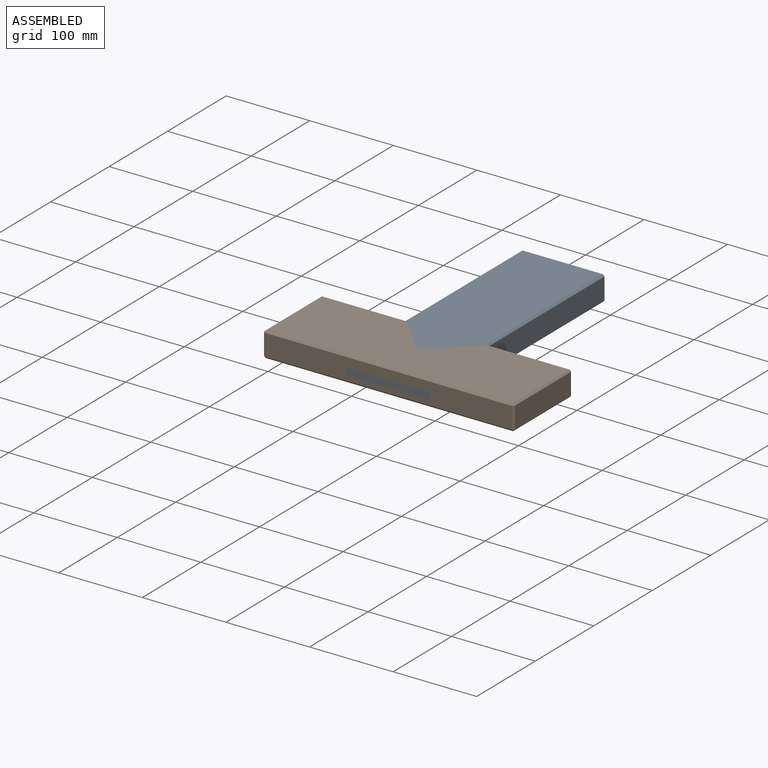
[diagram: assembled view]
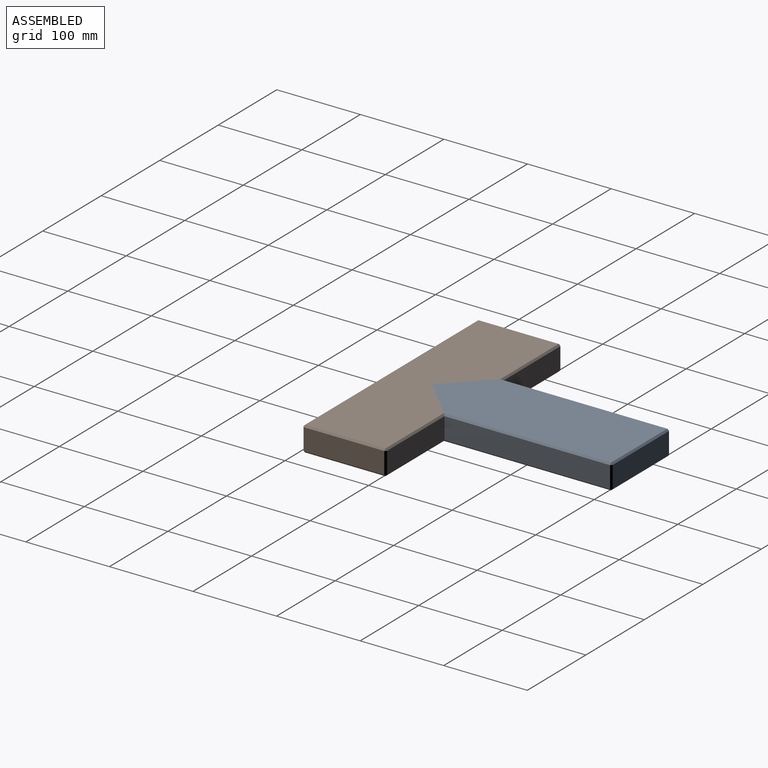
[diagram: assembled view, second angle]
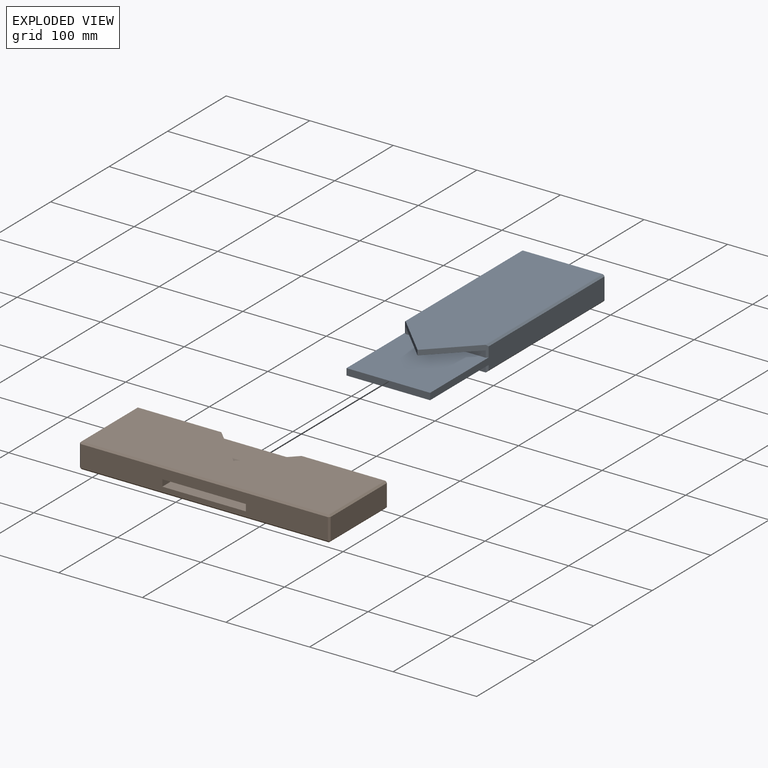
[diagram: exploded view]
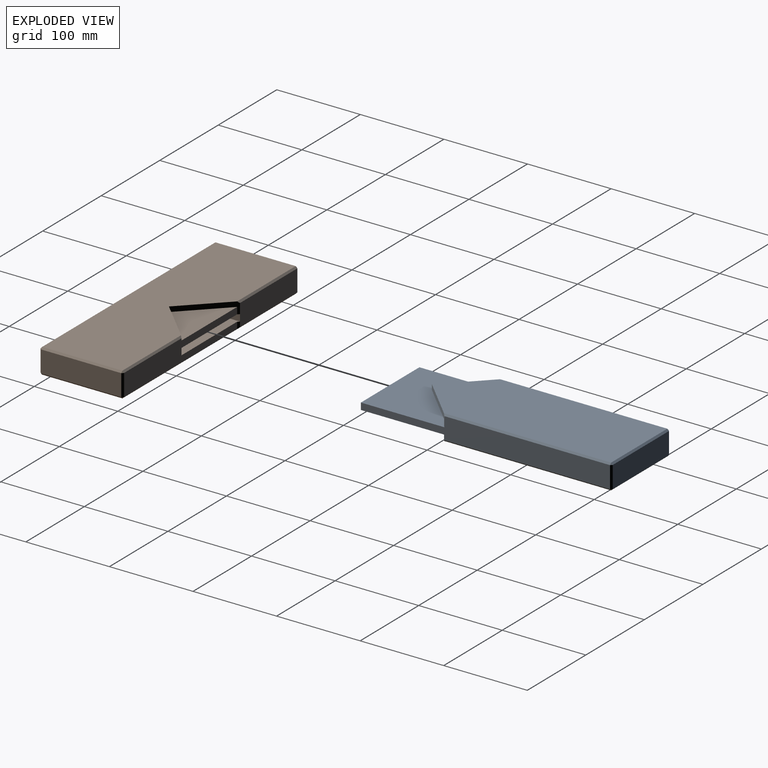
[diagram: exploded view, second angle]
ASSEMBLY  parts=2 mates=2
PART A: 27 faces, bbox 100x300x30 mm
  f0: plane 100x100mm, normal (0,0,-1), area 9804mm2, adj f2,f8,f9,f12,f13,f14
  f1: plane 248x96mm, normal (0,0,1), area 21504mm2, adj f10,f11,f16,f22,f23
  f2: plane 100x8mm, normal (0,-1,0), area 800mm2, adj f0,f7,f8,f9
  f3: plane 200x96mm, normal (0,0,-1), area 19200mm2, adj f12,f15,f20,f21
  f4: plane 96x26mm, normal (0,1,0), area 2496mm2, adj f17,f20,f23,f26
  f5: plane 96x48mm, normal (0,0,-1), area 2304mm2, adj f6,f10,f11
  f6: plane 96x8mm, normal (0,-1,0), area 768mm2, adj f5,f7,f10,f11
  f7: plane 100x100mm, normal (0,0,1), area 9804mm2, adj f2,f6,f8,f9,f10,f11
  f8: plane 298x26mm, normal (1,0,0), area 5948mm2, adj f0,f2,f7,f11,f14,f21,f22,f26
  f9: plane 298x26mm, normal (-1,0,0), area 5948mm2, adj f0,f2,f7,f10,f13,f15,f16,f17
  f10: plane 50x50mm, normal (-0.71,-0.71,0), area 444.1mm2, adj f1,f5,f6,f7,f9,f11,f16
  f11: plane 50x50mm, normal (0.71,-0.71,0), area 444.1mm2, adj f1,f5,f6,f7,f8,f10,f22
  f12: plane 96x8mm, normal (0,-1,0), area 768mm2, adj f0,f3,f13,f14
  f13: plane 8x2mm, normal (-0.71,-0.71,0), area 19.8mm2, adj f0,f9,f12,f15
  f14: plane 8x2mm, normal (0.71,-0.71,0), area 19.8mm2, adj f0,f8,f12,f21
  f15: plane 200x2mm, normal (-0.71,0,-0.71), area 562.9mm2, adj f3,f9,f13,f18
  f16: plane 200x2mm, normal (-0.71,0,0.71), area 562.9mm2, adj f1,f9,f10,f19
  f17: plane 26x2mm, normal (-0.71,0.71,0), area 73.5mm2, adj f4,f9,f18,f19
  f18: plane 2x2mm, normal (-0.58,0.58,-0.58), area 3.5mm2, adj f15,f17,f20
  f19: plane 2x2mm, normal (-0.58,0.58,0.58), area 3.5mm2, adj f16,f17,f23
  f20: plane 96x2mm, normal (0,0.71,-0.71), area 271.5mm2, adj f3,f4,f18,f24
  f21: plane 200x2mm, normal (0.71,0,-0.71), area 562.9mm2, adj f3,f8,f14,f24
  f22: plane 200x2mm, normal (0.71,0,0.71), area 562.9mm2, adj f1,f8,f11,f25
  f23: plane 96x2mm, normal (0,0.71,0.71), area 271.5mm2, adj f1,f4,f19,f25
  f24: plane 2x2mm, normal (0.58,0.58,-0.58), area 3.5mm2, adj f20,f21,f26
  f25: plane 2x2mm, normal (0.58,0.58,0.58), area 3.5mm2, adj f22,f23,f26
  f26: plane 26x2mm, normal (0.71,0.71,0), area 73.5mm2, adj f4,f8,f24,f25
PART B: 40 faces, bbox 300x100x30 mm
  f0: plane 98x26mm, normal (0,1,0), area 2548mm2, adj f4,f11,f13,f15,f16,f36
  f1: plane 98x26mm, normal (0,1,0), area 2548mm2, adj f10,f12,f20,f21,f22,f37
  f2: plane 96x48mm, normal (0,0,1), area 2304mm2, adj f10,f11,f39
  f3: plane 100x100mm, normal (0,0,1), area 9804mm2, adj f9,f12,f13,f36,f37,f38
  f4: plane 100x2mm, normal (0,0.71,-0.71), area 280mm2, adj f0,f7,f18,f36
  f5: plane 296x96mm, normal (0,0,1), area 26112mm2, adj f10,f11,f15,f19,f20,f29,f30
  f6: plane 96x26mm, normal (-1,0,0), area 2496mm2, adj f16,f19,f23,f24
  f7: plane 296x96mm, normal (0,0,-1), area 28416mm2, adj f4,f22,f23,f31,f32,f38
  f8: plane 96x26mm, normal (1,0,0), area 2496mm2, adj f21,f30,f31,f35
  f9: plane 296x26mm, normal (0,-1,0), area 6896mm2, adj f3,f12,f13,f14,f24,f29,f32,f35
  f10: plane 50x50mm, normal (-0.71,0.71,0), area 444.1mm2, adj f1,f2,f5,f11,f14,f20,f39
  f11: plane 50x50mm, normal (0.71,0.71,0), area 444.1mm2, adj f0,f2,f5,f10,f14,f15,f39
  f12: plane 100x8mm, normal (-1,0,0), area 800mm2, adj f1,f3,f9,f14
  f13: plane 100x8mm, normal (1,0,0), area 800mm2, adj f0,f3,f9,f14
  f14: plane 100x100mm, normal (0,0,-1), area 9804mm2, adj f9,f10,f11,f12,f13,f39
  f15: plane 100x2mm, normal (0,0.71,0.71), area 280mm2, adj f0,f5,f11,f17
  f16: plane 26x2mm, normal (-0.71,0.71,0), area 73.5mm2, adj f0,f6,f17,f18
  f17: plane 2x2mm, normal (-0.58,0.58,0.58), area 3.5mm2, adj f15,f16,f19
  f18: plane 2x2mm, normal (-0.58,0.58,-0.58), area 3.5mm2, adj f4,f16,f23
  f19: plane 96x2mm, normal (-0.71,0,0.71), area 271.5mm2, adj f5,f6,f17,f25
  f20: plane 100x2mm, normal (0,0.71,0.71), area 280mm2, adj f1,f5,f10,f26
  f21: plane 26x2mm, normal (0.71,0.71,0), area 73.5mm2, adj f1,f8,f26,f27
  f22: plane 100x2mm, normal (0,0.71,-0.71), area 280mm2, adj f1,f7,f27,f37
  f23: plane 96x2mm, normal (-0.71,0,-0.71), area 271.5mm2, adj f6,f7,f18,f28
  f24: plane 26x2mm, normal (-0.71,-0.71,0), area 73.5mm2, adj f6,f9,f25,f28
  f25: plane 2x2mm, normal (-0.58,-0.58,0.58), area 3.5mm2, adj f19,f24,f29
  f26: plane 2x2mm, normal (0.58,0.58,0.58), area 3.5mm2, adj f20,f21,f30
  f27: plane 2x2mm, normal (0.58,0.58,-0.58), area 3.5mm2, adj f21,f22,f31
  f28: plane 2x2mm, normal (-0.58,-0.58,-0.58), area 3.5mm2, adj f23,f24,f32
  f29: plane 296x2mm, normal (0,-0.71,0.71), area 837.2mm2, adj f5,f9,f25,f33
  f30: plane 96x2mm, normal (0.71,0,0.71), area 271.5mm2, adj f5,f8,f26,f33
  f31: plane 96x2mm, normal (0.71,0,-0.71), area 271.5mm2, adj f7,f8,f27,f34
  f32: plane 296x2mm, normal (0,-0.71,-0.71), area 837.2mm2, adj f7,f9,f28,f34
  f33: plane 2x2mm, normal (0.58,-0.58,0.58), area 3.5mm2, adj f29,f30,f35
  f34: plane 2x2mm, normal (0.58,-0.58,-0.58), area 3.5mm2, adj f31,f32,f35
  f35: plane 26x2mm, normal (0.71,-0.71,0), area 73.5mm2, adj f8,f9,f33,f34
  f36: plane 8x2mm, normal (0.71,0.71,0), area 19.8mm2, adj f0,f3,f4,f38
  f37: plane 8x2mm, normal (-0.71,0.71,0), area 19.8mm2, adj f1,f3,f22,f38
  f38: plane 96x8mm, normal (0,1,0), area 768mm2, adj f3,f7,f36,f37
  f39: plane 96x8mm, normal (0,1,0), area 768mm2, adj f2,f10,f11,f14
PLACE A t=(36.3,-88.76,45.42)mm fixed
PLACE B t=(36.3,-88.76,45.42)mm
MATE slider B.f9 <-> A.f4  axis (0,-1,0) through (36.3,-88.76,60.77)mm
MATE planar B.f12 <-> A.f8  axis (-1,0,0) through (86.3,-38.76,57.42)mm
